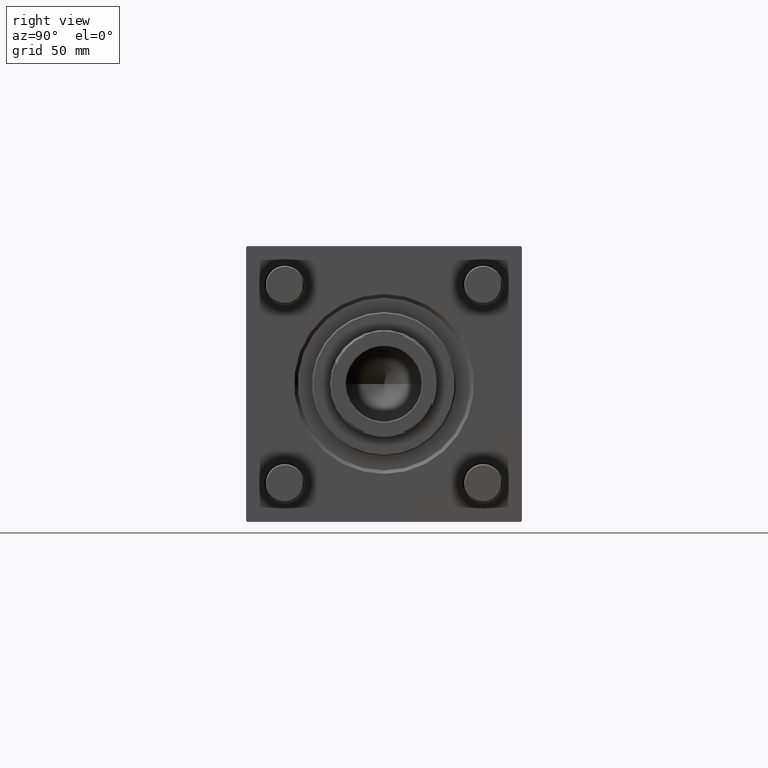
[diagram: clean part render]
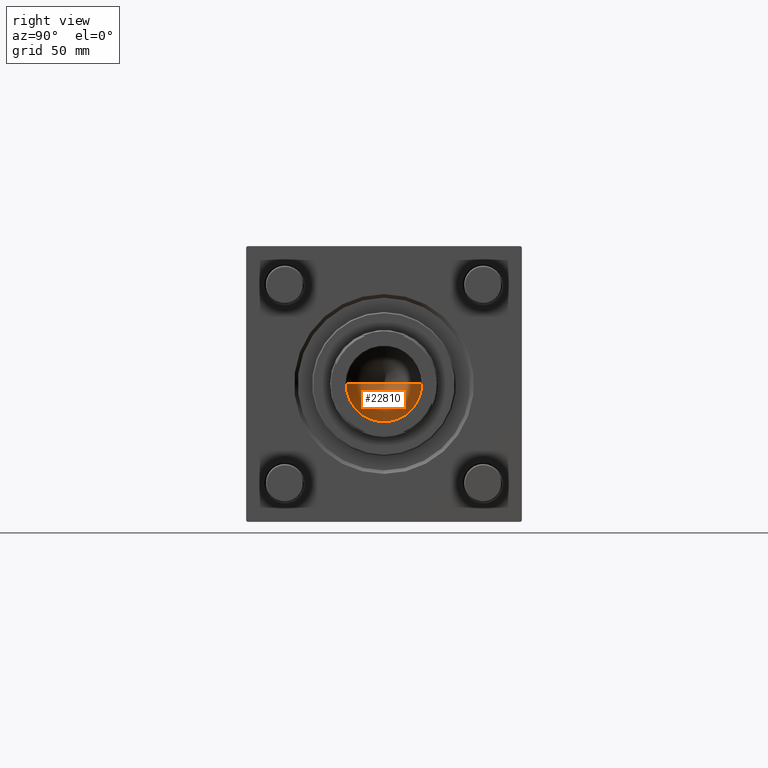
[diagram: same view with one face highlighted and labeled with its STEP entity id]
A machine part, right view. The second image highlights one B-rep face of the part: STEP entity #22810.
In plain terms, the highlighted conical surface has half-angle 59 deg.
Its self-contained STEP definition (entity closure, byte-faithful):
#4205 = VERTEX_POINT ( 'NONE', #14123 ) ;
#11583 = CARTESIAN_POINT ( 'NONE',  ( 15.74999999999998934, 0.000000000000000000, 111.0000000000000000 ) ) ;
#12832 = DIRECTION ( 'NONE',  ( -0.8571673007021115565, 1.049727191138617710E-16, 0.5150380749100554878 ) ) ;
#12913 = EDGE_CURVE ( 'NONE', #55939, #41498, #19649, .T. ) ;
#13796 = EDGE_LOOP ( 'NONE', ( #43820, #54643, #28221 ) ) ;
#14123 = CARTESIAN_POINT ( 'NONE',  ( -1.584115414415908206E-14, 0.000000000000000000, 101.5364452503159072 ) ) ;
#14779 = AXIS2_PLACEMENT_3D ( 'NONE', #16870, #47204, #51530 ) ;
#14982 = CARTESIAN_POINT ( 'NONE',  ( 0.000000000000000000, 0.000000000000000000, 111.0000000000000000 ) ) ;
#16172 = VECTOR ( 'NONE', #12832, 1000.000000000000000 ) ;
#16508 = EDGE_CURVE ( 'NONE', #4205, #55939, #49712, .T. ) ;
#16870 = CARTESIAN_POINT ( 'NONE',  ( 0.000000000000000000, 0.000000000000000000, 111.0000000000000000 ) ) ;
#19076 = DIRECTION ( 'NONE',  ( 0.8571673007021115565, 0.000000000000000000, 0.5150380749100554878 ) ) ;
#19649 = CIRCLE ( 'NONE', #24277, 15.74999999999998934 ) ;
#22810 = ADVANCED_FACE ( 'NONE', ( #42586 ), #57198, .F. ) ;
#23424 = CARTESIAN_POINT ( 'NONE',  ( 15.74999999999998934, 0.000000000000000000, 111.0000000000000000 ) ) ;
#24277 = AXIS2_PLACEMENT_3D ( 'NONE', #14982, #27984, #32321 ) ;
#25749 = CARTESIAN_POINT ( 'NONE',  ( -15.74999999999998934, 1.928818708657080161E-15, 111.0000000000000000 ) ) ;
#27984 = DIRECTION ( 'NONE',  ( -0.000000000000000000, -0.000000000000000000, 1.000000000000000000 ) ) ;
#28221 = ORIENTED_EDGE ( 'NONE', *, *, #12913, .T. ) ;
#31313 = LINE ( 'NONE', #48925, #16172 ) ;
#32321 = DIRECTION ( 'NONE',  ( 1.000000000000000000, 0.000000000000000000, 0.000000000000000000 ) ) ;
#41498 = VERTEX_POINT ( 'NONE', #25749 ) ;
#42412 = EDGE_CURVE ( 'NONE', #4205, #41498, #31313, .T. ) ;
#42586 = FACE_OUTER_BOUND ( 'NONE', #13796, .T. ) ;
#43820 = ORIENTED_EDGE ( 'NONE', *, *, #42412, .F. ) ;
#47204 = DIRECTION ( 'NONE',  ( -0.000000000000000000, -0.000000000000000000, 1.000000000000000000 ) ) ;
#48925 = CARTESIAN_POINT ( 'NONE',  ( -15.74999999999998934, 1.928818708657080161E-15, 111.0000000000000000 ) ) ;
#49712 = LINE ( 'NONE', #23424, #55798 ) ;
#51530 = DIRECTION ( 'NONE',  ( 1.000000000000000000, 0.000000000000000000, 0.000000000000000000 ) ) ;
#54643 = ORIENTED_EDGE ( 'NONE', *, *, #16508, .T. ) ;
#55798 = VECTOR ( 'NONE', #19076, 1000.000000000000000 ) ;
#55939 = VERTEX_POINT ( 'NONE', #11583 ) ;
#57198 = CONICAL_SURFACE ( 'NONE', #14779, 15.74999999999998934, 1.029744258676652979 ) ;